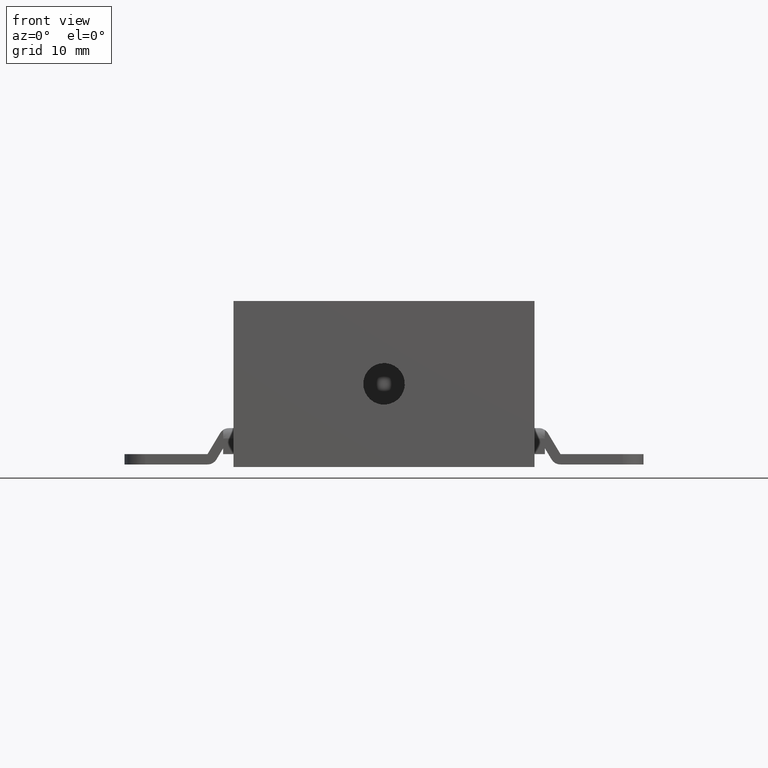
[diagram: clean part render]
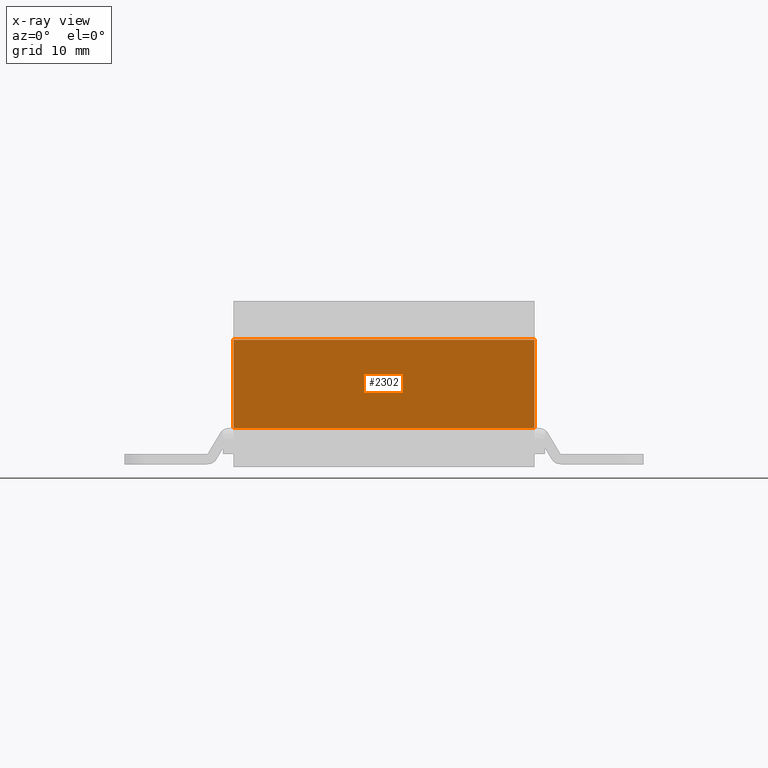
[diagram: x-ray — body ghosted, one internal face saturated and labeled with its STEP entity id]
A machine part, front view, then the same camera in x-ray: the body is ghosted and one INTERNAL B-rep face — a face not visible from any outside direction — is saturated and labeled: STEP entity #2302.
In plain terms, the highlighted face is a freeform B-spline surface patch.
Its self-contained STEP definition (entity closure, byte-faithful):
#1396=CARTESIAN_POINT('',(14.500004000000059,-1.010000000000000,12.0));
#1397=VERTEX_POINT('',#1396);
#1477=CARTESIAN_POINT('',(-14.500000000000000,-1.009999999999954,12.0));
#1478=VERTEX_POINT('',#1477);
#1958=CARTESIAN_POINT('',(14.500004000000059,-1.010000000000000,3.500000000000000));
#1959=VERTEX_POINT('',#1958);
#1965=CARTESIAN_POINT('',(14.500004000000059,-1.010000000000000,12.0));
#1966=CARTESIAN_POINT('',(14.500004000000059,-1.010000000000000,3.500000000000000));
#1967=QUASI_UNIFORM_CURVE('',1,(#1965,#1966),.UNSPECIFIED.,.F.,.U.);
#1968=EDGE_CURVE('',#1397,#1959,#1967,.T.);
#2018=CARTESIAN_POINT('',(-14.500000000000000,-1.010000000000000,3.500000000000000));
#2019=VERTEX_POINT('',#2018);
#2020=CARTESIAN_POINT('',(-14.500000000000000,-1.009999999999954,12.0));
#2021=CARTESIAN_POINT('',(-14.500000000000000,-1.010000000000000,3.500000000000000));
#2022=QUASI_UNIFORM_CURVE('',1,(#2020,#2021),.UNSPECIFIED.,.F.,.U.);
#2023=EDGE_CURVE('',#1478,#2019,#2022,.T.);
#2283=CARTESIAN_POINT('',(-15.948550143592371,-1.010000000000000,3.075425016474649));
#2284=CARTESIAN_POINT('',(-15.948550143592371,-1.010000000000000,12.424575211513121));
#2285=CARTESIAN_POINT('',(15.948554921433150,-1.010000000000000,3.075425016474650));
#2286=CARTESIAN_POINT('',(15.948554921433150,-1.010000000000000,12.424575211513121));
#2287=B_SPLINE_SURFACE_WITH_KNOTS('',1,1,((#2283,#2285),(#2284,#2286)),.UNSPECIFIED.,.F.,.F.,.U.,(2,2),(2,2),(0.0,9.349150195038469),(0.0,31.897105065025521),.UNSPECIFIED.);
#2288=ORIENTED_EDGE('',*,*,#2023,.F.);
#2289=CARTESIAN_POINT('',(14.500004000000059,-1.010000000000000,12.0));
#2290=CARTESIAN_POINT('',(-14.500000000000000,-1.009999999999954,12.0));
#2291=QUASI_UNIFORM_CURVE('',1,(#2289,#2290),.UNSPECIFIED.,.F.,.U.);
#2292=EDGE_CURVE('',#1397,#1478,#2291,.T.);
#2293=ORIENTED_EDGE('',*,*,#2292,.F.);
#2294=ORIENTED_EDGE('',*,*,#1968,.T.);
#2295=CARTESIAN_POINT('',(14.500004000000059,-1.010000000000000,3.500000000000000));
#2296=CARTESIAN_POINT('',(-14.500000000000000,-1.010000000000000,3.500000000000000));
#2297=QUASI_UNIFORM_CURVE('',1,(#2295,#2296),.UNSPECIFIED.,.F.,.U.);
#2298=EDGE_CURVE('',#1959,#2019,#2297,.T.);
#2299=ORIENTED_EDGE('',*,*,#2298,.T.);
#2300=EDGE_LOOP('',(#2288,#2293,#2294,#2299));
#2301=FACE_OUTER_BOUND('',#2300,.T.);
#2302=ADVANCED_FACE('',(#2301),#2287,.T.);